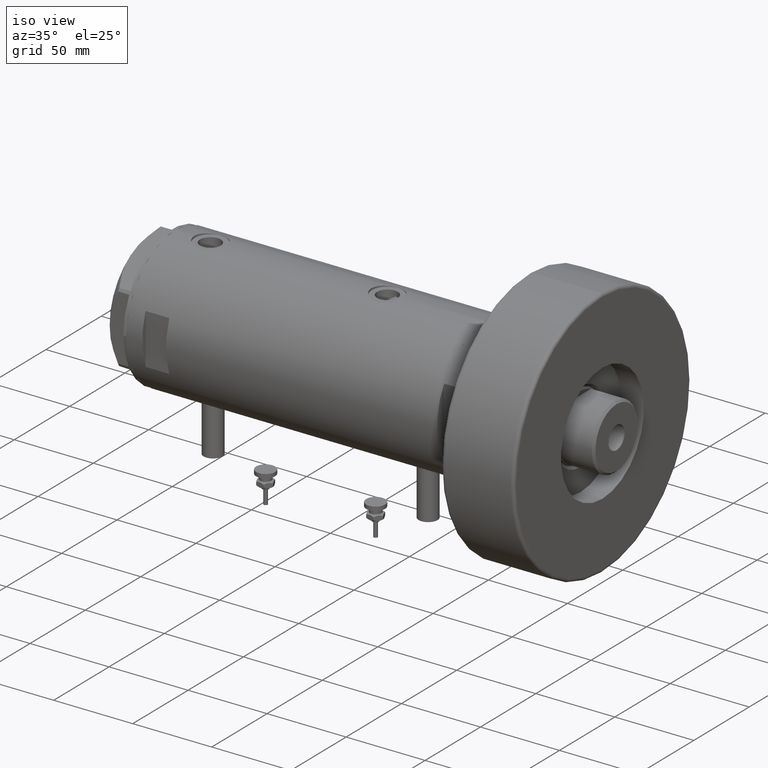
[diagram: clean part render]
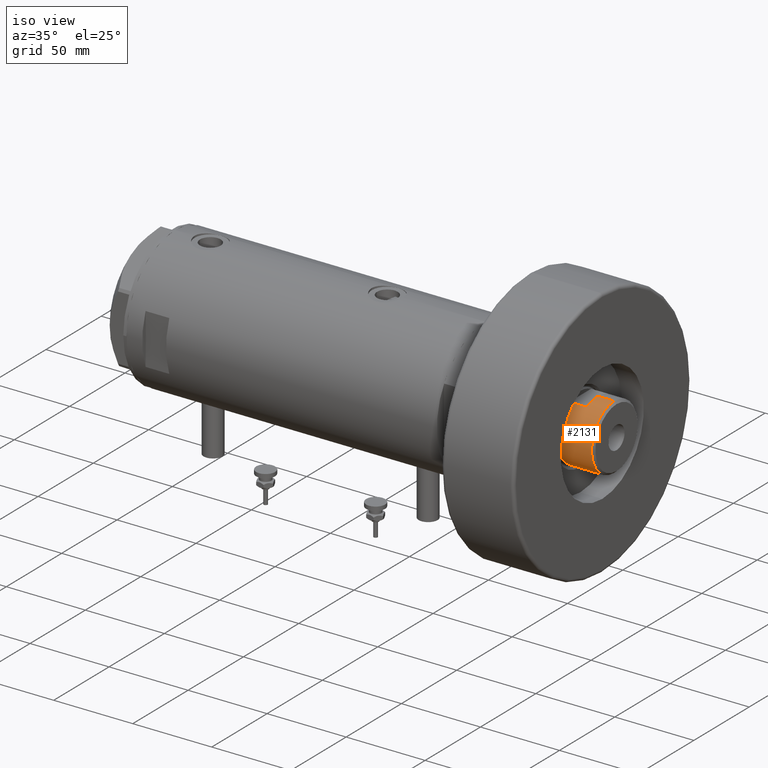
[diagram: same view with one face highlighted and labeled with its STEP entity id]
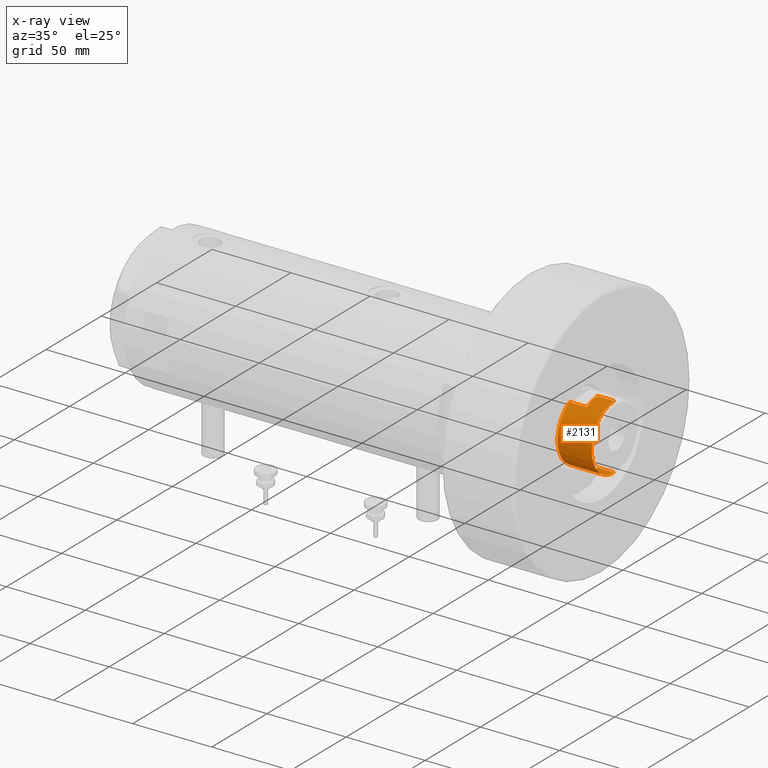
[diagram: x-ray of the same camera — body ghosted, the highlighted face saturated]
A machine part, iso view. The second image highlights one B-rep face of the part: STEP entity #2131.
The next image is the same camera in x-ray: the body ghosted, the highlighted face saturated — about 0% of this face is hidden behind the body in this view.
In plain terms, the highlighted cylindrical surface (partial cylindrical patch) has radius 20.5 mm, axis along (-1, -0, 0).
Its self-contained STEP definition (entity closure, byte-faithful):
#75 = EDGE_CURVE ( 'NONE', #4894, #1144, #2532, .T. ) ;
#106 = CARTESIAN_POINT ( 'NONE',  ( 0.000000000000000000, 0.000000000000000000, 241.3000000000000114 ) ) ;
#145 = VERTEX_POINT ( 'NONE', #2981 ) ;
#210 = VERTEX_POINT ( 'NONE', #247 ) ;
#246 = DIRECTION ( 'NONE',  ( -0.000000000000000000, -0.000000000000000000, -1.000000000000000000 ) ) ;
#247 = CARTESIAN_POINT ( 'NONE',  ( 20.50000000000000355, 2.510525938252074481E-15, 251.9000000000001194 ) ) ;
#290 = DIRECTION ( 'NONE',  ( 1.000000000000000000, 0.000000000000000000, 0.000000000000000000 ) ) ;
#299 = DIRECTION ( 'NONE',  ( 1.000000000000000000, 0.000000000000000000, 0.000000000000000000 ) ) ;
#346 = FACE_OUTER_BOUND ( 'NONE', #5012, .T. ) ;
#371 = DIRECTION ( 'NONE',  ( -0.000000000000000000, -0.000000000000000000, -1.000000000000000000 ) ) ;
#484 = VERTEX_POINT ( 'NONE', #5542 ) ;
#508 = AXIS2_PLACEMENT_3D ( 'NONE', #106, #1639, #1805 ) ;
#627 = DIRECTION ( 'NONE',  ( 0.000000000000000000, 0.000000000000000000, 1.000000000000000000 ) ) ;
#787 = EDGE_CURVE ( 'NONE', #1144, #145, #2158, .T. ) ;
#959 = VERTEX_POINT ( 'NONE', #3136 ) ;
#988 = EDGE_CURVE ( 'NONE', #484, #4894, #4011, .T. ) ;
#1144 = VERTEX_POINT ( 'NONE', #3259 ) ;
#1155 = ORIENTED_EDGE ( 'NONE', *, *, #1756, .F. ) ;
#1360 = CARTESIAN_POINT ( 'NONE',  ( 0.000000000000000000, 0.000000000000000000, 241.3000000000000114 ) ) ;
#1441 = CIRCLE ( 'NONE', #508, 20.50000000000000000 ) ;
#1639 = DIRECTION ( 'NONE',  ( 0.000000000000000000, 0.000000000000000000, 1.000000000000000000 ) ) ;
#1709 = CARTESIAN_POINT ( 'NONE',  ( -20.50000000000000355, 0.000000000000000000, 251.9000000000001194 ) ) ;
#1722 = CARTESIAN_POINT ( 'NONE',  ( 17.97852886083843060, -9.849999999999994316, 241.3000000000000114 ) ) ;
#1756 = EDGE_CURVE ( 'NONE', #210, #959, #1943, .T. ) ;
#1805 = DIRECTION ( 'NONE',  ( 1.000000000000000000, 0.000000000000000000, 0.000000000000000000 ) ) ;
#1807 = CARTESIAN_POINT ( 'NONE',  ( 0.000000000000000000, 0.000000000000000000, 230.3000000000000114 ) ) ;
#1868 = AXIS2_PLACEMENT_3D ( 'NONE', #1360, #371, #3239 ) ;
#1943 = LINE ( 'NONE', #5312, #4925 ) ;
#2058 = EDGE_CURVE ( 'NONE', #5141, #145, #2784, .T. ) ;
#2131 = ADVANCED_FACE ( 'NONE', ( #346 ), #2336, .T. ) ;
#2137 = CARTESIAN_POINT ( 'NONE',  ( -17.97852886083842350, -9.850000000000001421, 241.3000000000000114 ) ) ;
#2158 = CIRCLE ( 'NONE', #3699, 20.50000000000000355 ) ;
#2331 = ORIENTED_EDGE ( 'NONE', *, *, #988, .T. ) ;
#2336 = CYLINDRICAL_SURFACE ( 'NONE', #1868, 20.50000000000000355 ) ;
#2361 = ORIENTED_EDGE ( 'NONE', *, *, #75, .T. ) ;
#2392 = CIRCLE ( 'NONE', #4028, 20.50000000000000355 ) ;
#2532 = LINE ( 'NONE', #2137, #3993 ) ;
#2784 = LINE ( 'NONE', #1722, #4323 ) ;
#2913 = DIRECTION ( 'NONE',  ( -0.000000000000000000, -0.000000000000000000, -1.000000000000000000 ) ) ;
#2980 = DIRECTION ( 'NONE',  ( -0.000000000000000000, -0.000000000000000000, -1.000000000000000000 ) ) ;
#2981 = CARTESIAN_POINT ( 'NONE',  ( 17.97852886083843060, -9.849999999999960565, 230.3000000000000114 ) ) ;
#3136 = CARTESIAN_POINT ( 'NONE',  ( 20.50000000000000000, 2.510525938252074481E-15, 241.3000000000000114 ) ) ;
#3204 = EDGE_CURVE ( 'NONE', #5141, #959, #1441, .T. ) ;
#3225 = DIRECTION ( 'NONE',  ( 1.000000000000000000, 0.000000000000000000, 0.000000000000000000 ) ) ;
#3239 = DIRECTION ( 'NONE',  ( -1.000000000000000000, 0.000000000000000000, 0.000000000000000000 ) ) ;
#3259 = CARTESIAN_POINT ( 'NONE',  ( -17.97852886083842705, -9.849999999999972999, 230.3000000000000114 ) ) ;
#3285 = CARTESIAN_POINT ( 'NONE',  ( 0.000000000000000000, 0.000000000000000000, 251.9000000000001194 ) ) ;
#3319 = VECTOR ( 'NONE', #2913, 1000.000000000000000 ) ;
#3392 = LINE ( 'NONE', #5331, #3319 ) ;
#3699 = AXIS2_PLACEMENT_3D ( 'NONE', #1807, #5841, #299 ) ;
#3763 = ORIENTED_EDGE ( 'NONE', *, *, #2058, .F. ) ;
#3806 = ORIENTED_EDGE ( 'NONE', *, *, #787, .T. ) ;
#3993 = VECTOR ( 'NONE', #4960, 1000.000000000000000 ) ;
#4011 = CIRCLE ( 'NONE', #5332, 20.50000000000000000 ) ;
#4028 = AXIS2_PLACEMENT_3D ( 'NONE', #3285, #4269, #290 ) ;
#4130 = EDGE_CURVE ( 'NONE', #5845, #484, #3392, .T. ) ;
#4200 = CARTESIAN_POINT ( 'NONE',  ( 0.000000000000000000, 0.000000000000000000, 241.3000000000000114 ) ) ;
#4269 = DIRECTION ( 'NONE',  ( 0.000000000000000000, 0.000000000000000000, -1.000000000000000000 ) ) ;
#4323 = VECTOR ( 'NONE', #246, 1000.000000000000000 ) ;
#4678 = ORIENTED_EDGE ( 'NONE', *, *, #4130, .T. ) ;
#4807 = EDGE_CURVE ( 'NONE', #210, #5845, #2392, .T. ) ;
#4894 = VERTEX_POINT ( 'NONE', #6294 ) ;
#4925 = VECTOR ( 'NONE', #2980, 1000.000000000000000 ) ;
#4960 = DIRECTION ( 'NONE',  ( -0.000000000000000000, -0.000000000000000000, -1.000000000000000000 ) ) ;
#5012 = EDGE_LOOP ( 'NONE', ( #1155, #5423, #4678, #2331, #2361, #3806, #3763, #5769 ) ) ;
#5141 = VERTEX_POINT ( 'NONE', #5611 ) ;
#5312 = CARTESIAN_POINT ( 'NONE',  ( 20.50000000000000355, 2.510525938252074481E-15, 241.3000000000000114 ) ) ;
#5331 = CARTESIAN_POINT ( 'NONE',  ( -20.50000000000000355, 0.000000000000000000, 241.3000000000000114 ) ) ;
#5332 = AXIS2_PLACEMENT_3D ( 'NONE', #4200, #627, #3225 ) ;
#5423 = ORIENTED_EDGE ( 'NONE', *, *, #4807, .T. ) ;
#5542 = CARTESIAN_POINT ( 'NONE',  ( -20.50000000000000000, 0.000000000000000000, 241.3000000000000114 ) ) ;
#5611 = CARTESIAN_POINT ( 'NONE',  ( 17.97852886083843060, -9.849999999999994316, 241.3000000000000114 ) ) ;
#5769 = ORIENTED_EDGE ( 'NONE', *, *, #3204, .T. ) ;
#5841 = DIRECTION ( 'NONE',  ( 0.000000000000000000, 0.000000000000000000, 1.000000000000000000 ) ) ;
#5845 = VERTEX_POINT ( 'NONE', #1709 ) ;
#6294 = CARTESIAN_POINT ( 'NONE',  ( -17.97852886083842705, -9.849999999999996092, 241.3000000000000114 ) ) ;